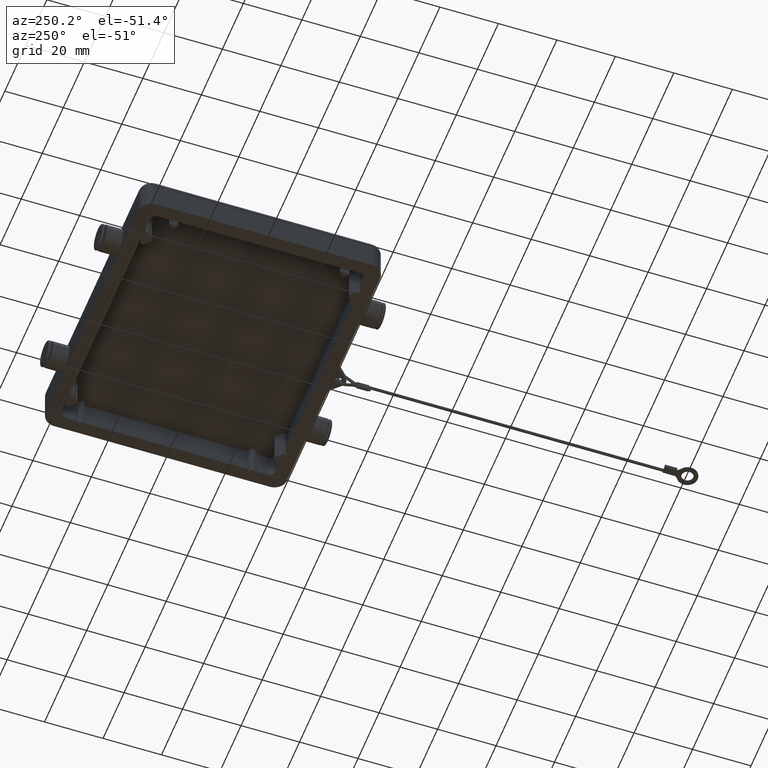
[diagram: clean part render]
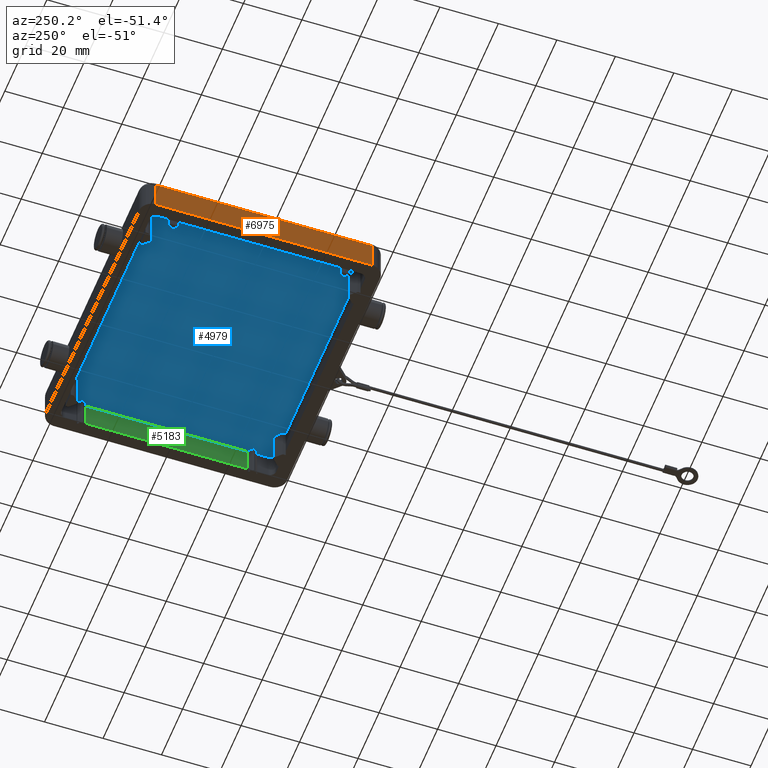
[diagram: same view with three faces highlighted in distinct colors, each labeled with its STEP entity id]
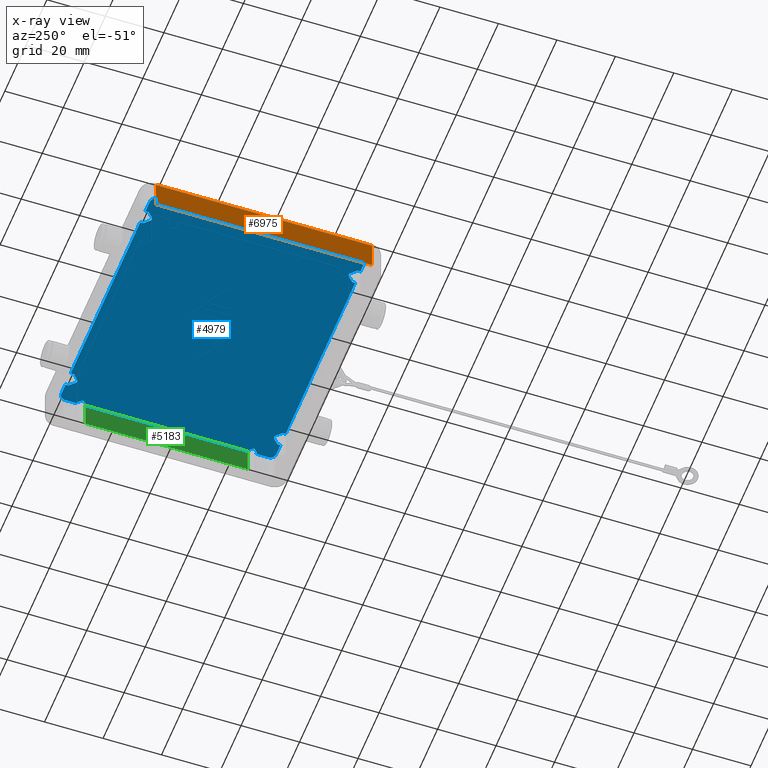
[diagram: x-ray of the same camera — body ghosted, the three highlighted faces saturated]
A machine part, auxiliary view with three faces highlighted in distinct colors.
The next image is the same camera in x-ray (body ghosted, the three faces saturated) — at least one of them is partly hidden behind the body in this view.
Their STEP definitions:

[orange] entity #6975 — the highlighted planar face has unit normal (-1, 0, 0).
#922=CARTESIAN_POINT('',(-48.500000000000014,36.950000000000003,0.0));
#923=VERTEX_POINT('',#922);
#931=CARTESIAN_POINT('',(-48.500000000000014,36.950000000000003,10.000000000000002));
#932=VERTEX_POINT('',#931);
#933=CARTESIAN_POINT('',(-48.500000000000014,36.950000000000003,0.0));
#934=DIRECTION('',(0.0,0.0,1.0));
#935=VECTOR('',#934,10.000000000000002);
#936=LINE('',#933,#935);
#937=EDGE_CURVE('',#923,#932,#936,.T.);
#6665=CARTESIAN_POINT('',(-48.500000000000014,-36.949999999999996,10.000000000000002));
#6666=VERTEX_POINT('',#6665);
#6667=CARTESIAN_POINT('',(-48.500000000000014,36.950000000000003,10.000000000000002));
#6668=DIRECTION('',(0.0,-1.0,0.0));
#6669=VECTOR('',#6668,73.900000000000006);
#6670=LINE('',#6667,#6669);
#6671=EDGE_CURVE('',#932,#6666,#6670,.T.);
#6717=CARTESIAN_POINT('',(-48.500000000000014,-36.949999999999996,0.0));
#6718=VERTEX_POINT('',#6717);
#6719=CARTESIAN_POINT('',(-48.500000000000014,-36.949999999999996,10.000000000000002));
#6720=DIRECTION('',(0.0,0.0,-1.0));
#6721=VECTOR('',#6720,10.000000000000002);
#6722=LINE('',#6719,#6721);
#6723=EDGE_CURVE('',#6666,#6718,#6722,.T.);
#6959=CARTESIAN_POINT('',(-48.500000000000014,-41.250000000000000,0.0));
#6960=DIRECTION('',(-1.0,0.0,0.0));
#6961=DIRECTION('',(0.0,0.0,1.0));
#6962=AXIS2_PLACEMENT_3D('',#6959,#6960,#6961);
#6963=PLANE('',#6962);
#6964=ORIENTED_EDGE('',*,*,#937,.F.);
#6965=CARTESIAN_POINT('',(-48.500000000000014,-36.949999999999996,0.0));
#6966=DIRECTION('',(0.0,1.0,0.0));
#6967=VECTOR('',#6966,73.900000000000006);
#6968=LINE('',#6965,#6967);
#6969=EDGE_CURVE('',#6718,#923,#6968,.T.);
#6970=ORIENTED_EDGE('',*,*,#6969,.F.);
#6971=ORIENTED_EDGE('',*,*,#6723,.F.);
#6972=ORIENTED_EDGE('',*,*,#6671,.F.);
#6973=EDGE_LOOP('',(#6964,#6970,#6971,#6972));
#6974=FACE_OUTER_BOUND('',#6973,.T.);
#6975=ADVANCED_FACE('',(#6974),#6963,.T.);

[blue] entity #4979 — the highlighted planar face has unit normal (0, 0, 1).
#4060=CARTESIAN_POINT('',(-43.500000000000000,30.749999999999993,9.0));
#4061=VERTEX_POINT('',#4060);
#4068=CARTESIAN_POINT('',(-42.494974746830593,29.744974746830579,9.0));
#4069=VERTEX_POINT('',#4068);
#4070=CARTESIAN_POINT('',(-42.494974746830593,29.744974746830579,9.0));
#4071=DIRECTION('',(-0.707106781186545,0.707106781186550,0.0));
#4072=VECTOR('',#4071,1.421320343559634);
#4073=LINE('',#4070,#4072);
#4074=EDGE_CURVE('',#4069,#4061,#4073,.T.);
#4121=CARTESIAN_POINT('',(-42.494974746830593,28.755025253169411,9.0));
#4122=VERTEX_POINT('',#4121);
#4123=CARTESIAN_POINT('',(-42.989949493661172,29.249999999999993,9.0));
#4124=DIRECTION('',(0.0,0.0,1.0));
#4125=DIRECTION('',(-0.707106781186544,0.707106781186551,0.0));
#4126=AXIS2_PLACEMENT_3D('',#4123,#4124,#4125);
#4127=CIRCLE('',#4126,0.700000000000003);
#4128=EDGE_CURVE('',#4122,#4069,#4127,.T.);
#4153=CARTESIAN_POINT('',(-43.500000000000000,27.749999999999993,9.0));
#4154=VERTEX_POINT('',#4153);
#4155=CARTESIAN_POINT('',(-43.500000000000000,27.749999999999993,9.0));
#4156=DIRECTION('',(0.707106781186544,0.707106781186551,0.0));
#4157=VECTOR('',#4156,1.421320343559636);
#4158=LINE('',#4155,#4157);
#4159=EDGE_CURVE('',#4154,#4122,#4158,.T.);
#4184=CARTESIAN_POINT('',(-44.0,27.749999999999993,9.0));
#4185=VERTEX_POINT('',#4184);
#4186=CARTESIAN_POINT('',(-44.0,27.749999999999993,9.0));
#4187=DIRECTION('',(1.0,0.0,0.0));
#4188=VECTOR('',#4187,0.500000000000000);
#4189=LINE('',#4186,#4188);
#4190=EDGE_CURVE('',#4185,#4154,#4189,.T.);
#4252=CARTESIAN_POINT('',(-44.0,30.749999999999993,9.0));
#4253=VERTEX_POINT('',#4252);
#4260=CARTESIAN_POINT('',(-43.500000000000000,30.749999999999993,9.0));
#4261=DIRECTION('',(-1.0,0.0,0.0));
#4262=VECTOR('',#4261,0.500000000000000);
#4263=LINE('',#4260,#4262);
#4264=EDGE_CURVE('',#4061,#4253,#4263,.T.);
#4290=CARTESIAN_POINT('',(-44.0,-27.750000000000004,9.0));
#4291=VERTEX_POINT('',#4290);
#4292=CARTESIAN_POINT('',(-44.0,-27.750000000000004,9.0));
#4293=DIRECTION('',(0.0,1.0,0.0));
#4294=VECTOR('',#4293,55.500000000000000);
#4295=LINE('',#4292,#4294);
#4296=EDGE_CURVE('',#4291,#4185,#4295,.T.);
#4329=CARTESIAN_POINT('',(-44.0,34.750000000000000,9.0));
#4330=VERTEX_POINT('',#4329);
#4337=CARTESIAN_POINT('',(-44.0,30.749999999999993,9.0));
#4338=DIRECTION('',(0.0,1.0,0.0));
#4339=VECTOR('',#4338,4.000000000000007);
#4340=LINE('',#4337,#4339);
#4341=EDGE_CURVE('',#4253,#4330,#4340,.T.);
#4399=CARTESIAN_POINT('',(-43.500000000000000,-27.750000000000004,9.0));
#4400=VERTEX_POINT('',#4399);
#4407=CARTESIAN_POINT('',(-42.494974746830593,-28.755025253169421,9.0));
#4408=VERTEX_POINT('',#4407);
#4409=CARTESIAN_POINT('',(-42.494974746830593,-28.755025253169421,9.0));
#4410=DIRECTION('',(-0.707106781186544,0.707106781186551,0.0));
#4411=VECTOR('',#4410,1.421320343559636);
#4412=LINE('',#4409,#4411);
#4413=EDGE_CURVE('',#4408,#4400,#4412,.T.);
#4460=CARTESIAN_POINT('',(-42.494974746830593,-29.744974746830586,9.0));
#4461=VERTEX_POINT('',#4460);
#4462=CARTESIAN_POINT('',(-42.989949493661172,-29.250000000000004,9.0));
#4463=DIRECTION('',(0.0,0.0,1.0));
#4464=DIRECTION('',(-0.707106781186544,0.707106781186551,0.0));
#4465=AXIS2_PLACEMENT_3D('',#4462,#4463,#4464);
#4466=CIRCLE('',#4465,0.700000000000003);
#4467=EDGE_CURVE('',#4461,#4408,#4466,.T.);
#4492=CARTESIAN_POINT('',(-43.500000000000000,-30.750000000000000,9.0));
#4493=VERTEX_POINT('',#4492);
#4494=CARTESIAN_POINT('',(-43.500000000000000,-30.750000000000000,9.0));
#4495=DIRECTION('',(0.707106781186545,0.707106781186550,0.0));
#4496=VECTOR('',#4495,1.421320343559634);
#4497=LINE('',#4494,#4496);
#4498=EDGE_CURVE('',#4493,#4461,#4497,.T.);
#4521=CARTESIAN_POINT('',(-44.0,-30.750000000000000,9.0));
#4522=VERTEX_POINT('',#4521);
#4523=CARTESIAN_POINT('',(-44.0,-30.750000000000000,9.0));
#4524=DIRECTION('',(1.0,0.0,0.0));
#4525=VECTOR('',#4524,0.500000000000000);
#4526=LINE('',#4523,#4525);
#4527=EDGE_CURVE('',#4522,#4493,#4526,.T.);
#4552=CARTESIAN_POINT('',(-43.500000000000000,-27.750000000000004,9.0));
#4553=DIRECTION('',(-1.0,0.0,0.0));
#4554=VECTOR('',#4553,0.500000000000000);
#4555=LINE('',#4552,#4554);
#4556=EDGE_CURVE('',#4400,#4291,#4555,.T.);
#4582=CARTESIAN_POINT('',(-43.999999999999993,-34.750000000000000,9.0));
#4583=VERTEX_POINT('',#4582);
#4584=CARTESIAN_POINT('',(-43.999999999999993,-34.750000000000000,9.0));
#4585=DIRECTION('',(0.0,1.0,0.0));
#4586=VECTOR('',#4585,4.0);
#4587=LINE('',#4584,#4586);
#4588=EDGE_CURVE('',#4583,#4522,#4587,.T.);
#4607=CARTESIAN_POINT('',(2.665444E-015,-1.110223E-015,9.0));
#4608=DIRECTION('',(0.0,0.0,1.0));
#4609=DIRECTION('',(1.0,0.0,0.0));
#4610=AXIS2_PLACEMENT_3D('',#4607,#4608,#4609);
#4611=PLANE('',#4610);
#4612=ORIENTED_EDGE('',*,*,#4264,.T.);
#4613=ORIENTED_EDGE('',*,*,#4341,.T.);
#4614=CARTESIAN_POINT('',(-42.000000000000014,36.749999999999986,9.0));
#4615=VERTEX_POINT('',#4614);
#4616=CARTESIAN_POINT('',(-42.000000000000014,34.749999999999993,9.0));
#4617=DIRECTION('',(0.0,0.0,-1.0));
#4618=DIRECTION('',(0.0,1.0,0.0));
#4619=AXIS2_PLACEMENT_3D('',#4616,#4617,#4618);
#4620=CIRCLE('',#4619,2.000000000000002);
#4621=EDGE_CURVE('',#4330,#4615,#4620,.T.);
#4622=ORIENTED_EDGE('',*,*,#4621,.T.);
#4623=CARTESIAN_POINT('',(-38.000000000000007,36.750000000000000,9.0));
#4624=VERTEX_POINT('',#4623);
#4625=CARTESIAN_POINT('',(-42.000000000000014,36.749999999999986,9.0));
#4626=DIRECTION('',(1.0,0.0,0.0));
#4627=VECTOR('',#4626,4.000000000000007);
#4628=LINE('',#4625,#4627);
#4629=EDGE_CURVE('',#4615,#4624,#4628,.T.);
#4630=ORIENTED_EDGE('',*,*,#4629,.T.);
#4631=CARTESIAN_POINT('',(-38.000000000000007,35.750000000000000,9.0));
#4632=VERTEX_POINT('',#4631);
#4633=CARTESIAN_POINT('',(-38.000000000000007,36.750000000000000,9.0));
#4634=DIRECTION('',(0.0,-1.0,0.0));
#4635=VECTOR('',#4634,1.0);
#4636=LINE('',#4633,#4635);
#4637=EDGE_CURVE('',#4624,#4632,#4636,.T.);
#4638=ORIENTED_EDGE('',*,*,#4637,.T.);
#4639=CARTESIAN_POINT('',(-36.207106781186560,33.957106781186532,9.0));
#4640=VERTEX_POINT('',#4639);
#4641=CARTESIAN_POINT('',(-38.000000000000007,35.750000000000000,9.0));
#4642=DIRECTION('',(0.707106781186543,-0.707106781186552,0.0));
#4643=VECTOR('',#4642,2.535533905932744);
#4644=LINE('',#4641,#4643);
#4645=EDGE_CURVE('',#4632,#4640,#4644,.T.);
#4646=ORIENTED_EDGE('',*,*,#4645,.T.);
#4647=CARTESIAN_POINT('',(-34.792893218813454,33.957106781186532,9.0));
#4648=VERTEX_POINT('',#4647);
#4649=CARTESIAN_POINT('',(-35.500000000000007,34.664213562373085,9.0));
#4650=DIRECTION('',(0.0,0.0,1.000000000000000));
#4651=DIRECTION('',(-0.707106781186548,0.707106781186548,0.0));
#4652=AXIS2_PLACEMENT_3D('',#4649,#4650,#4651);
#4653=CIRCLE('',#4652,1.000000000000006);
#4654=EDGE_CURVE('',#4640,#4648,#4653,.T.);
#4655=ORIENTED_EDGE('',*,*,#4654,.T.);
#4656=CARTESIAN_POINT('',(-33.000000000000007,35.750000000000000,9.0));
#4657=VERTEX_POINT('',#4656);
#4658=CARTESIAN_POINT('',(-34.792893218813454,33.957106781186532,9.0));
#4659=DIRECTION('',(0.707106781186543,0.707106781186552,0.0));
#4660=VECTOR('',#4659,2.535533905932744);
#4661=LINE('',#4658,#4660);
#4662=EDGE_CURVE('',#4648,#4657,#4661,.T.);
#4663=ORIENTED_EDGE('',*,*,#4662,.T.);
#4664=CARTESIAN_POINT('',(-33.000000000000007,36.750000000000000,9.0));
#4665=VERTEX_POINT('',#4664);
#4666=CARTESIAN_POINT('',(-33.000000000000007,35.750000000000000,9.0));
#4667=DIRECTION('',(0.0,1.0,0.0));
#4668=VECTOR('',#4667,1.0);
#4669=LINE('',#4666,#4668);
#4670=EDGE_CURVE('',#4657,#4665,#4669,.T.);
#4671=ORIENTED_EDGE('',*,*,#4670,.T.);
#4672=CARTESIAN_POINT('',(33.000000000000007,36.750000000000000,9.0));
#4673=VERTEX_POINT('',#4672);
#4674=CARTESIAN_POINT('',(-33.000000000000007,36.750000000000000,9.0));
#4675=DIRECTION('',(1.0,0.0,0.0));
#4676=VECTOR('',#4675,66.000000000000014);
#4677=LINE('',#4674,#4676);
#4678=EDGE_CURVE('',#4665,#4673,#4677,.T.);
#4679=ORIENTED_EDGE('',*,*,#4678,.T.);
#4680=CARTESIAN_POINT('',(33.000000000000007,35.750000000000000,9.0));
#4681=VERTEX_POINT('',#4680);
#4682=CARTESIAN_POINT('',(33.000000000000007,36.750000000000000,9.0));
#4683=DIRECTION('',(0.0,-1.0,0.0));
#4684=VECTOR('',#4683,1.0);
#4685=LINE('',#4682,#4684);
#4686=EDGE_CURVE('',#4673,#4681,#4685,.T.);
#4687=ORIENTED_EDGE('',*,*,#4686,.T.);
#4688=CARTESIAN_POINT('',(34.792893218813454,33.957106781186532,9.0));
#4689=VERTEX_POINT('',#4688);
#4690=CARTESIAN_POINT('',(33.000000000000007,35.750000000000000,9.0));
#4691=DIRECTION('',(0.707106781186543,-0.707106781186552,0.0));
#4692=VECTOR('',#4691,2.535533905932744);
#4693=LINE('',#4690,#4692);
#4694=EDGE_CURVE('',#4681,#4689,#4693,.T.);
#4695=ORIENTED_EDGE('',*,*,#4694,.T.);
#4696=CARTESIAN_POINT('',(36.207106781186560,33.957106781186532,9.0));
#4697=VERTEX_POINT('',#4696);
#4698=CARTESIAN_POINT('',(35.500000000000007,34.664213562373085,9.0));
#4699=DIRECTION('',(0.0,0.0,1.000000000000000));
#4700=DIRECTION('',(-0.707106781186548,0.707106781186548,0.0));
#4701=AXIS2_PLACEMENT_3D('',#4698,#4699,#4700);
#4702=CIRCLE('',#4701,1.000000000000006);
#4703=EDGE_CURVE('',#4689,#4697,#4702,.T.);
#4704=ORIENTED_EDGE('',*,*,#4703,.T.);
#4705=CARTESIAN_POINT('',(38.000000000000007,35.750000000000000,9.0));
#4706=VERTEX_POINT('',#4705);
#4707=CARTESIAN_POINT('',(36.207106781186560,33.957106781186532,9.0));
#4708=DIRECTION('',(0.707106781186543,0.707106781186552,0.0));
#4709=VECTOR('',#4708,2.535533905932744);
#4710=LINE('',#4707,#4709);
#4711=EDGE_CURVE('',#4697,#4706,#4710,.T.);
#4712=ORIENTED_EDGE('',*,*,#4711,.T.);
#4713=CARTESIAN_POINT('',(38.000000000000007,36.750000000000000,9.0));
#4714=VERTEX_POINT('',#4713);
#4715=CARTESIAN_POINT('',(38.000000000000007,35.750000000000000,9.0));
#4716=DIRECTION('',(0.0,1.0,0.0));
#4717=VECTOR('',#4716,1.0);
#4718=LINE('',#4715,#4717);
#4719=EDGE_CURVE('',#4706,#4714,#4718,.T.);
#4720=ORIENTED_EDGE('',*,*,#4719,.T.);
#4721=CARTESIAN_POINT('',(41.999999999999993,36.750000000000000,9.0));
#4722=VERTEX_POINT('',#4721);
#4723=CARTESIAN_POINT('',(38.000000000000007,36.750000000000000,9.0));
#4724=DIRECTION('',(1.0,0.0,0.0));
#4725=VECTOR('',#4724,3.999999999999986);
#4726=LINE('',#4723,#4725);
#4727=EDGE_CURVE('',#4714,#4722,#4726,.T.);
#4728=ORIENTED_EDGE('',*,*,#4727,.T.);
#4729=CARTESIAN_POINT('',(44.0,34.750000000000000,9.0));
#4730=VERTEX_POINT('',#4729);
#4731=CARTESIAN_POINT('',(41.999999999999993,34.750000000000000,9.0));
#4732=DIRECTION('',(0.0,0.0,-1.0));
#4733=DIRECTION('',(1.0,0.0,0.0));
#4734=AXIS2_PLACEMENT_3D('',#4731,#4732,#4733);
#4735=CIRCLE('',#4734,2.000000000000002);
#4736=EDGE_CURVE('',#4722,#4730,#4735,.T.);
#4737=ORIENTED_EDGE('',*,*,#4736,.T.);
#4738=CARTESIAN_POINT('',(44.0,30.749999999999993,9.0));
#4739=VERTEX_POINT('',#4738);
#4740=CARTESIAN_POINT('',(44.0,34.750000000000000,9.0));
#4741=DIRECTION('',(0.0,-1.0,0.0));
#4742=VECTOR('',#4741,4.000000000000007);
#4743=LINE('',#4740,#4742);
#4744=EDGE_CURVE('',#4730,#4739,#4743,.T.);
#4745=ORIENTED_EDGE('',*,*,#4744,.T.);
#4746=CARTESIAN_POINT('',(43.500000000000000,30.749999999999993,9.0));
#4747=VERTEX_POINT('',#4746);
#4748=CARTESIAN_POINT('',(44.0,30.749999999999993,9.0));
#4749=DIRECTION('',(-1.0,0.0,0.0));
#4750=VECTOR('',#4749,0.500000000000000);
#4751=LINE('',#4748,#4750);
#4752=EDGE_CURVE('',#4739,#4747,#4751,.T.);
#4753=ORIENTED_EDGE('',*,*,#4752,.T.);
#4754=CARTESIAN_POINT('',(42.494974746830593,29.744974746830579,9.0));
#4755=VERTEX_POINT('',#4754);
#4756=CARTESIAN_POINT('',(43.500000000000000,30.749999999999993,9.0));
#4757=DIRECTION('',(-0.707106781186545,-0.707106781186550,0.0));
#4758=VECTOR('',#4757,1.421320343559634);
#4759=LINE('',#4756,#4758);
#4760=EDGE_CURVE('',#4747,#4755,#4759,.T.);
#4761=ORIENTED_EDGE('',*,*,#4760,.T.);
#4762=CARTESIAN_POINT('',(42.494974746830593,28.755025253169411,9.0));
#4763=VERTEX_POINT('',#4762);
#4764=CARTESIAN_POINT('',(42.989949493661172,29.249999999999993,9.0));
#4765=DIRECTION('',(0.0,0.0,1.0));
#4766=DIRECTION('',(0.707106781186544,0.707106781186551,0.0));
#4767=AXIS2_PLACEMENT_3D('',#4764,#4765,#4766);
#4768=CIRCLE('',#4767,0.700000000000003);
#4769=EDGE_CURVE('',#4755,#4763,#4768,.T.);
#4770=ORIENTED_EDGE('',*,*,#4769,.T.);
#4771=CARTESIAN_POINT('',(43.500000000000000,27.749999999999993,9.0));
#4772=VERTEX_POINT('',#4771);
#4773=CARTESIAN_POINT('',(42.494974746830593,28.755025253169411,9.0));
#4774=DIRECTION('',(0.707106781186544,-0.707106781186551,0.0));
#4775=VECTOR('',#4774,1.421320343559636);
#4776=LINE('',#4773,#4775);
#4777=EDGE_CURVE('',#4763,#4772,#4776,.T.);
#4778=ORIENTED_EDGE('',*,*,#4777,.T.);
#4779=CARTESIAN_POINT('',(44.0,27.749999999999993,9.0));
#4780=VERTEX_POINT('',#4779);
#4781=CARTESIAN_POINT('',(43.500000000000000,27.749999999999993,9.0));
#4782=DIRECTION('',(1.0,0.0,0.0));
#4783=VECTOR('',#4782,0.500000000000000);
#4784=LINE('',#4781,#4783);
#4785=EDGE_CURVE('',#4772,#4780,#4784,.T.);
#4786=ORIENTED_EDGE('',*,*,#4785,.T.);
#4787=CARTESIAN_POINT('',(44.0,-27.750000000000004,9.0));
#4788=VERTEX_POINT('',#4787);
#4789=CARTESIAN_POINT('',(44.0,27.749999999999993,9.0));
#4790=DIRECTION('',(0.0,-1.0,0.0));
#4791=VECTOR('',#4790,55.500000000000000);
#4792=LINE('',#4789,#4791);
#4793=EDGE_CURVE('',#4780,#4788,#4792,.T.);
#4794=ORIENTED_EDGE('',*,*,#4793,.T.);
#4795=CARTESIAN_POINT('',(43.500000000000000,-27.750000000000004,9.0));
#4796=VERTEX_POINT('',#4795);
#4797=CARTESIAN_POINT('',(44.0,-27.750000000000004,9.0));
#4798=DIRECTION('',(-1.0,0.0,0.0));
#4799=VECTOR('',#4798,0.500000000000000);
#4800=LINE('',#4797,#4799);
#4801=EDGE_CURVE('',#4788,#4796,#4800,.T.);
#4802=ORIENTED_EDGE('',*,*,#4801,.T.);
#4803=CARTESIAN_POINT('',(42.494974746830593,-28.755025253169421,9.0));
#4804=VERTEX_POINT('',#4803);
#4805=CARTESIAN_POINT('',(43.500000000000000,-27.750000000000004,9.0));
#4806=DIRECTION('',(-0.707106781186544,-0.707106781186551,0.0));
#4807=VECTOR('',#4806,1.421320343559636);
#4808=LINE('',#4805,#4807);
#4809=EDGE_CURVE('',#4796,#4804,#4808,.T.);
#4810=ORIENTED_EDGE('',*,*,#4809,.T.);
#4811=CARTESIAN_POINT('',(42.494974746830593,-29.744974746830586,9.0));
#4812=VERTEX_POINT('',#4811);
#4813=CARTESIAN_POINT('',(42.989949493661172,-29.250000000000004,9.0));
#4814=DIRECTION('',(0.0,0.0,1.0));
#4815=DIRECTION('',(0.707106781186544,0.707106781186551,0.0));
#4816=AXIS2_PLACEMENT_3D('',#4813,#4814,#4815);
#4817=CIRCLE('',#4816,0.700000000000003);
#4818=EDGE_CURVE('',#4804,#4812,#4817,.T.);
#4819=ORIENTED_EDGE('',*,*,#4818,.T.);
#4820=CARTESIAN_POINT('',(43.500000000000000,-30.750000000000000,9.0));
#4821=VERTEX_POINT('',#4820);
#4822=CARTESIAN_POINT('',(42.494974746830593,-29.744974746830586,9.0));
#4823=DIRECTION('',(0.707106781186545,-0.707106781186550,0.0));
#4824=VECTOR('',#4823,1.421320343559634);
#4825=LINE('',#4822,#4824);
#4826=EDGE_CURVE('',#4812,#4821,#4825,.T.);
#4827=ORIENTED_EDGE('',*,*,#4826,.T.);
#4828=CARTESIAN_POINT('',(44.0,-30.750000000000000,9.0));
#4829=VERTEX_POINT('',#4828);
#4830=CARTESIAN_POINT('',(43.500000000000000,-30.750000000000000,9.0));
#4831=DIRECTION('',(1.0,0.0,0.0));
#4832=VECTOR('',#4831,0.500000000000000);
#4833=LINE('',#4830,#4832);
#4834=EDGE_CURVE('',#4821,#4829,#4833,.T.);
#4835=ORIENTED_EDGE('',*,*,#4834,.T.);
#4836=CARTESIAN_POINT('',(44.0,-34.750000000000000,9.0));
#4837=VERTEX_POINT('',#4836);
#4838=CARTESIAN_POINT('',(44.0,-30.750000000000000,9.0));
#4839=DIRECTION('',(0.0,-1.0,0.0));
#4840=VECTOR('',#4839,4.0);
#4841=LINE('',#4838,#4840);
#4842=EDGE_CURVE('',#4829,#4837,#4841,.T.);
#4843=ORIENTED_EDGE('',*,*,#4842,.T.);
#4844=CARTESIAN_POINT('',(42.000000000000014,-36.750000000000000,9.0));
#4845=VERTEX_POINT('',#4844);
#4846=CARTESIAN_POINT('',(42.000000000000014,-34.750000000000000,9.0));
#4847=DIRECTION('',(0.0,0.0,-1.0));
#4848=DIRECTION('',(0.0,-1.0,0.0));
#4849=AXIS2_PLACEMENT_3D('',#4846,#4847,#4848);
#4850=CIRCLE('',#4849,2.000000000000004);
#4851=EDGE_CURVE('',#4837,#4845,#4850,.T.);
#4852=ORIENTED_EDGE('',*,*,#4851,.T.);
#4853=CARTESIAN_POINT('',(38.000000000000007,-36.750000000000000,9.0));
#4854=VERTEX_POINT('',#4853);
#4855=CARTESIAN_POINT('',(42.000000000000014,-36.750000000000000,9.0));
#4856=DIRECTION('',(-1.0,0.0,0.0));
#4857=VECTOR('',#4856,4.000000000000007);
#4858=LINE('',#4855,#4857);
#4859=EDGE_CURVE('',#4845,#4854,#4858,.T.);
#4860=ORIENTED_EDGE('',*,*,#4859,.T.);
#4861=CARTESIAN_POINT('',(38.000000000000007,-35.750000000000000,9.0));
#4862=VERTEX_POINT('',#4861);
#4863=CARTESIAN_POINT('',(38.000000000000007,-36.750000000000000,9.0));
#4864=DIRECTION('',(0.0,1.0,0.0));
#4865=VECTOR('',#4864,1.0);
#4866=LINE('',#4863,#4865);
#4867=EDGE_CURVE('',#4854,#4862,#4866,.T.);
#4868=ORIENTED_EDGE('',*,*,#4867,.T.);
#4869=CARTESIAN_POINT('',(36.207106781186560,-33.957106781186532,9.0));
#4870=VERTEX_POINT('',#4869);
#4871=CARTESIAN_POINT('',(38.000000000000007,-35.750000000000000,9.0));
#4872=DIRECTION('',(-0.707106781186543,0.707106781186552,0.0));
#4873=VECTOR('',#4872,2.535533905932744);
#4874=LINE('',#4871,#4873);
#4875=EDGE_CURVE('',#4862,#4870,#4874,.T.);
#4876=ORIENTED_EDGE('',*,*,#4875,.T.);
#4877=CARTESIAN_POINT('',(34.792893218813454,-33.957106781186532,9.0));
#4878=VERTEX_POINT('',#4877);
#4879=CARTESIAN_POINT('',(35.500000000000007,-34.664213562373085,9.0));
#4880=DIRECTION('',(0.0,0.0,1.000000000000000));
#4881=DIRECTION('',(-0.707106781186548,-0.707106781186548,0.0));
#4882=AXIS2_PLACEMENT_3D('',#4879,#4880,#4881);
#4883=CIRCLE('',#4882,1.000000000000006);
#4884=EDGE_CURVE('',#4870,#4878,#4883,.T.);
#4885=ORIENTED_EDGE('',*,*,#4884,.T.);
#4886=CARTESIAN_POINT('',(33.000000000000007,-35.750000000000000,9.0));
#4887=VERTEX_POINT('',#4886);
#4888=CARTESIAN_POINT('',(34.792893218813454,-33.957106781186532,9.0));
#4889=DIRECTION('',(-0.707106781186543,-0.707106781186552,0.0));
#4890=VECTOR('',#4889,2.535533905932744);
#4891=LINE('',#4888,#4890);
#4892=EDGE_CURVE('',#4878,#4887,#4891,.T.);
#4893=ORIENTED_EDGE('',*,*,#4892,.T.);
#4894=CARTESIAN_POINT('',(33.000000000000007,-36.750000000000000,9.0));
#4895=VERTEX_POINT('',#4894);
#4896=CARTESIAN_POINT('',(33.000000000000007,-35.750000000000000,9.0));
#4897=DIRECTION('',(0.0,-1.0,0.0));
#4898=VECTOR('',#4897,1.0);
#4899=LINE('',#4896,#4898);
#4900=EDGE_CURVE('',#4887,#4895,#4899,.T.);
#4901=ORIENTED_EDGE('',*,*,#4900,.T.);
#4902=CARTESIAN_POINT('',(-33.000000000000007,-36.750000000000000,9.0));
#4903=VERTEX_POINT('',#4902);
#4904=CARTESIAN_POINT('',(33.000000000000007,-36.750000000000000,9.0));
#4905=DIRECTION('',(-1.0,0.0,0.0));
#4906=VECTOR('',#4905,66.000000000000014);
#4907=LINE('',#4904,#4906);
#4908=EDGE_CURVE('',#4895,#4903,#4907,.T.);
#4909=ORIENTED_EDGE('',*,*,#4908,.T.);
#4910=CARTESIAN_POINT('',(-33.000000000000007,-35.750000000000000,9.0));
#4911=VERTEX_POINT('',#4910);
#4912=CARTESIAN_POINT('',(-33.000000000000007,-36.750000000000000,9.0));
#4913=DIRECTION('',(0.0,1.0,0.0));
#4914=VECTOR('',#4913,1.0);
#4915=LINE('',#4912,#4914);
#4916=EDGE_CURVE('',#4903,#4911,#4915,.T.);
#4917=ORIENTED_EDGE('',*,*,#4916,.T.);
#4918=CARTESIAN_POINT('',(-34.792893218813454,-33.957106781186532,9.0));
#4919=VERTEX_POINT('',#4918);
#4920=CARTESIAN_POINT('',(-33.000000000000007,-35.750000000000000,9.0));
#4921=DIRECTION('',(-0.707106781186543,0.707106781186552,0.0));
#4922=VECTOR('',#4921,2.535533905932744);
#4923=LINE('',#4920,#4922);
#4924=EDGE_CURVE('',#4911,#4919,#4923,.T.);
#4925=ORIENTED_EDGE('',*,*,#4924,.T.);
#4926=CARTESIAN_POINT('',(-36.207106781186560,-33.957106781186532,9.0));
#4927=VERTEX_POINT('',#4926);
#4928=CARTESIAN_POINT('',(-35.500000000000007,-34.664213562373085,9.0));
#4929=DIRECTION('',(0.0,0.0,1.000000000000000));
#4930=DIRECTION('',(-0.707106781186548,-0.707106781186548,0.0));
#4931=AXIS2_PLACEMENT_3D('',#4928,#4929,#4930);
#4932=CIRCLE('',#4931,1.000000000000006);
#4933=EDGE_CURVE('',#4919,#4927,#4932,.T.);
#4934=ORIENTED_EDGE('',*,*,#4933,.T.);
#4935=CARTESIAN_POINT('',(-38.000000000000007,-35.750000000000000,9.0));
#4936=VERTEX_POINT('',#4935);
#4937=CARTESIAN_POINT('',(-36.207106781186560,-33.957106781186532,9.0));
#4938=DIRECTION('',(-0.707106781186543,-0.707106781186552,0.0));
#4939=VECTOR('',#4938,2.535533905932744);
#4940=LINE('',#4937,#4939);
#4941=EDGE_CURVE('',#4927,#4936,#4940,.T.);
#4942=ORIENTED_EDGE('',*,*,#4941,.T.);
#4943=CARTESIAN_POINT('',(-38.000000000000007,-36.750000000000000,9.0));
#4944=VERTEX_POINT('',#4943);
#4945=CARTESIAN_POINT('',(-38.000000000000007,-35.750000000000000,9.0));
#4946=DIRECTION('',(0.0,-1.0,0.0));
#4947=VECTOR('',#4946,1.0);
#4948=LINE('',#4945,#4947);
#4949=EDGE_CURVE('',#4936,#4944,#4948,.T.);
#4950=ORIENTED_EDGE('',*,*,#4949,.T.);
#4951=CARTESIAN_POINT('',(-41.999999999999993,-36.750000000000000,9.0));
#4952=VERTEX_POINT('',#4951);
#4953=CARTESIAN_POINT('',(-38.000000000000007,-36.750000000000000,9.0));
#4954=DIRECTION('',(-1.0,0.0,0.0));
#4955=VECTOR('',#4954,3.999999999999986);
#4956=LINE('',#4953,#4955);
#4957=EDGE_CURVE('',#4944,#4952,#4956,.T.);
#4958=ORIENTED_EDGE('',*,*,#4957,.T.);
#4959=CARTESIAN_POINT('',(-41.999999999999993,-34.750000000000000,9.0));
#4960=DIRECTION('',(0.0,0.0,-1.0));
#4961=DIRECTION('',(-1.0,0.0,0.0));
#4962=AXIS2_PLACEMENT_3D('',#4959,#4960,#4961);
#4963=CIRCLE('',#4962,2.000000000000002);
#4964=EDGE_CURVE('',#4952,#4583,#4963,.T.);
#4965=ORIENTED_EDGE('',*,*,#4964,.T.);
#4966=ORIENTED_EDGE('',*,*,#4588,.T.);
#4967=ORIENTED_EDGE('',*,*,#4527,.T.);
#4968=ORIENTED_EDGE('',*,*,#4498,.T.);
#4969=ORIENTED_EDGE('',*,*,#4467,.T.);
#4970=ORIENTED_EDGE('',*,*,#4413,.T.);
#4971=ORIENTED_EDGE('',*,*,#4556,.T.);
#4972=ORIENTED_EDGE('',*,*,#4296,.T.);
#4973=ORIENTED_EDGE('',*,*,#4190,.T.);
#4974=ORIENTED_EDGE('',*,*,#4159,.T.);
#4975=ORIENTED_EDGE('',*,*,#4128,.T.);
#4976=ORIENTED_EDGE('',*,*,#4074,.T.);
#4977=EDGE_LOOP('',(#4612,#4613,#4622,#4630,#4638,#4646,#4655,#4663,#4671,#4679,#4687,#4695,#4704,#4712,#4720,#4728,#4737,#4745,#4753,#4761,#4770,#4778,#4786,#4794,#4802,#4810,#4819,#4827,#4835,#4843,#4852,#4860,#4868,#4876,#4885,#4893,#4901,#4909,#4917,#4925,#4934,#4942,#4950,#4958,#4965,#4966,#4967,#4968,#4969,#4970,#4971,#4972,#4973,#4974,#4975,#4976));
#4978=FACE_OUTER_BOUND('',#4977,.T.);
#4979=ADVANCED_FACE('',(#4978),#4611,.F.);

[green] entity #5183 — the highlighted planar face has unit normal (1, 0, 0).
#4779=CARTESIAN_POINT('',(44.0,27.749999999999993,9.0));
#4780=VERTEX_POINT('',#4779);
#4787=CARTESIAN_POINT('',(44.0,-27.750000000000004,9.0));
#4788=VERTEX_POINT('',#4787);
#4789=CARTESIAN_POINT('',(44.0,27.749999999999993,9.0));
#4790=DIRECTION('',(0.0,-1.0,0.0));
#4791=VECTOR('',#4790,55.500000000000000);
#4792=LINE('',#4789,#4791);
#4793=EDGE_CURVE('',#4780,#4788,#4792,.T.);
#4985=CARTESIAN_POINT('',(44.0,27.749999999999993,0.0));
#4986=VERTEX_POINT('',#4985);
#5112=CARTESIAN_POINT('',(44.0,27.749999999999993,9.0));
#5113=DIRECTION('',(0.0,0.0,-1.0));
#5114=VECTOR('',#5113,9.0);
#5115=LINE('',#5112,#5114);
#5116=EDGE_CURVE('',#4780,#4986,#5115,.T.);
#5160=CARTESIAN_POINT('',(44.0,34.750000000000000,0.0));
#5161=DIRECTION('',(1.0,0.0,0.0));
#5162=DIRECTION('',(0.0,0.0,-1.0));
#5163=AXIS2_PLACEMENT_3D('',#5160,#5161,#5162);
#5164=PLANE('',#5163);
#5165=ORIENTED_EDGE('',*,*,#5116,.T.);
#5166=CARTESIAN_POINT('',(44.0,-27.750000000000004,0.0));
#5167=VERTEX_POINT('',#5166);
#5168=CARTESIAN_POINT('',(44.0,-27.750000000000004,0.0));
#5169=DIRECTION('',(0.0,1.0,0.0));
#5170=VECTOR('',#5169,55.500000000000000);
#5171=LINE('',#5168,#5170);
#5172=EDGE_CURVE('',#5167,#4986,#5171,.T.);
#5173=ORIENTED_EDGE('',*,*,#5172,.F.);
#5174=CARTESIAN_POINT('',(44.0,-27.750000000000004,0.0));
#5175=DIRECTION('',(0.0,0.0,1.0));
#5176=VECTOR('',#5175,9.0);
#5177=LINE('',#5174,#5176);
#5178=EDGE_CURVE('',#5167,#4788,#5177,.T.);
#5179=ORIENTED_EDGE('',*,*,#5178,.T.);
#5180=ORIENTED_EDGE('',*,*,#4793,.F.);
#5181=EDGE_LOOP('',(#5165,#5173,#5179,#5180));
#5182=FACE_OUTER_BOUND('',#5181,.T.);
#5183=ADVANCED_FACE('',(#5182),#5164,.F.);